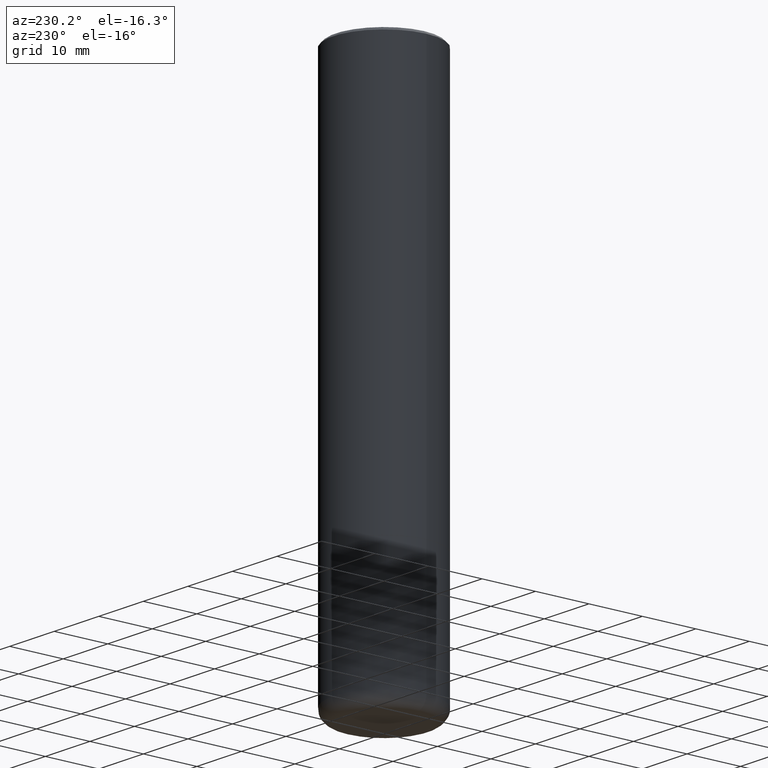
[diagram: clean part render]
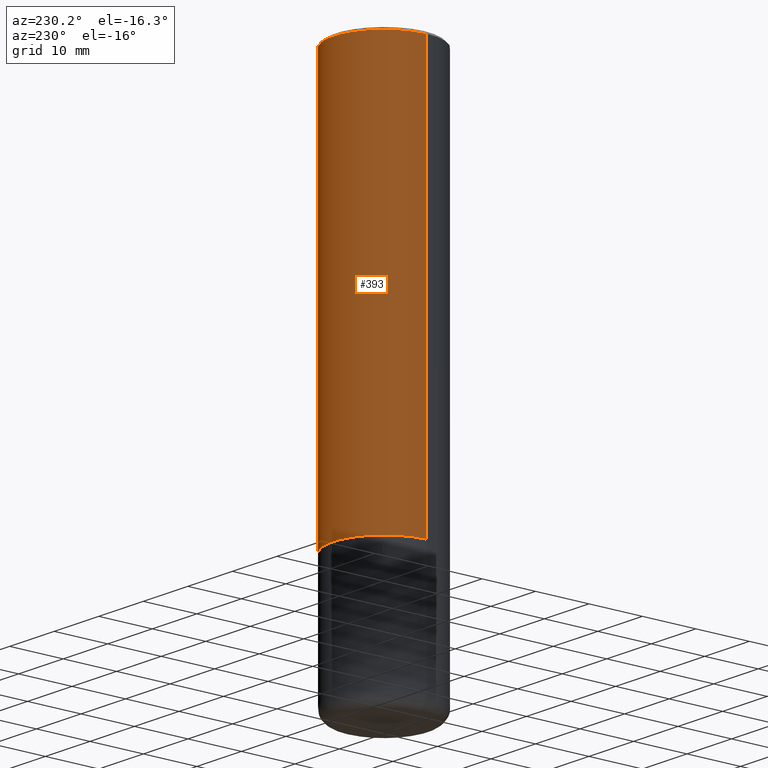
[diagram: same view with one face highlighted and labeled with its STEP entity id]
A machine part, auxiliary view. The second image highlights one B-rep face of the part: STEP entity #393.
In plain terms, the highlighted cylindrical surface (partial cylindrical patch) has radius 9.525 mm, axis along (-0, 0, 1).
Its self-contained STEP definition (entity closure, byte-faithful):
#18 = VECTOR ( 'NONE', #492, 39.37007874015748143 ) ;
#22 = VERTEX_POINT ( 'NONE', #383 ) ;
#56 = ORIENTED_EDGE ( 'NONE', *, *, #74, .T. ) ;
#72 = CARTESIAN_POINT ( 'NONE',  ( 7.333960949749226429E-29, -1.047095253519059492E-14, -2.999000000000000554 ) ) ;
#74 = EDGE_CURVE ( 'NONE', #88, #297, #93, .T. ) ;
#81 = EDGE_CURVE ( 'NONE', #297, #171, #382, .T. ) ;
#88 = VERTEX_POINT ( 'NONE', #411 ) ;
#93 = CIRCLE ( 'NONE', #226, 0.3749999999999995004 ) ;
#142 = CARTESIAN_POINT ( 'NONE',  ( -0.3749999999999992784, 2.664535259100370569E-15, -1.844600658845586235E-29 ) ) ;
#164 = EDGE_CURVE ( 'NONE', #88, #22, #374, .T. ) ;
#171 = VERTEX_POINT ( 'NONE', #386 ) ;
#176 = AXIS2_PLACEMENT_3D ( 'NONE', #353, #388, #459 ) ;
#181 = FACE_OUTER_BOUND ( 'NONE', #440, .T. ) ;
#192 = CARTESIAN_POINT ( 'NONE',  ( -0.3749999999999993894, -2.605855821883354597E-15, -2.999000000000000554 ) ) ;
#199 = ORIENTED_EDGE ( 'NONE', *, *, #164, .F. ) ;
#226 = AXIS2_PLACEMENT_3D ( 'NONE', #72, #309, #342 ) ;
#233 = VECTOR ( 'NONE', #262, 39.37007874015748143 ) ;
#262 = DIRECTION ( 'NONE',  ( -2.445468806185136877E-29, 3.491481338843145188E-15, 1.000000000000000000 ) ) ;
#264 = CARTESIAN_POINT ( 'NONE',  ( 0.3749999999999992784, -2.618611004132345283E-15, 1.828566290923472279E-29 ) ) ;
#288 = CIRCLE ( 'NONE', #176, 0.3749999999999991673 ) ;
#294 = DIRECTION ( 'NONE',  ( -2.445468806185136597E-29, 3.491481338843145583E-15, 1.000000000000000000 ) ) ;
#297 = VERTEX_POINT ( 'NONE', #192 ) ;
#309 = DIRECTION ( 'NONE',  ( -2.445468806185136597E-29, 3.491481338843145583E-15, 1.000000000000000000 ) ) ;
#327 = ORIENTED_EDGE ( 'NONE', *, *, #81, .T. ) ;
#342 = DIRECTION ( 'NONE',  ( 1.000000000000000000, -6.982962677686266711E-15, 0.000000000000000000 ) ) ;
#353 = CARTESIAN_POINT ( 'NONE',  ( 4.890937612370327459E-31, -6.982962677686369262E-17, -0.02000000000000022246 ) ) ;
#354 = EDGE_CURVE ( 'NONE', #22, #171, #288, .T. ) ;
#357 = ORIENTED_EDGE ( 'NONE', *, *, #354, .F. ) ;
#369 = DIRECTION ( 'NONE',  ( 1.000000000000000000, -6.982962677686267499E-15, 4.876176775795935232E-29 ) ) ;
#374 = LINE ( 'NONE', #264, #233 ) ;
#382 = LINE ( 'NONE', #142, #18 ) ;
#383 = CARTESIAN_POINT ( 'NONE',  ( 0.3749999999999991673, -2.642516375941182112E-15, -0.02000000000000022246 ) ) ;
#386 = CARTESIAN_POINT ( 'NONE',  ( -0.3749999999999991673, 2.548781377355480407E-15, -0.02000000000000022246 ) ) ;
#388 = DIRECTION ( 'NONE',  ( -2.445468806185136597E-29, 3.491481338843145583E-15, 1.000000000000000000 ) ) ;
#393 = ADVANCED_FACE ( 'NONE', ( #181 ), #408, .T. ) ;
#399 = CARTESIAN_POINT ( 'NONE',  ( 0.000000000000000000, 0.000000000000000000, 0.000000000000000000 ) ) ;
#408 = CYLINDRICAL_SURFACE ( 'NONE', #455, 0.3749999999999992784 ) ;
#411 = CARTESIAN_POINT ( 'NONE',  ( 0.3749999999999995004, -1.308956353932294179E-14, -2.999000000000000554 ) ) ;
#440 = EDGE_LOOP ( 'NONE', ( #56, #327, #357, #199 ) ) ;
#455 = AXIS2_PLACEMENT_3D ( 'NONE', #399, #294, #369 ) ;
#459 = DIRECTION ( 'NONE',  ( 1.000000000000000000, -6.982962677686266711E-15, 0.000000000000000000 ) ) ;
#492 = DIRECTION ( 'NONE',  ( -2.445468806185136877E-29, 3.491481338843145188E-15, 1.000000000000000000 ) ) ;